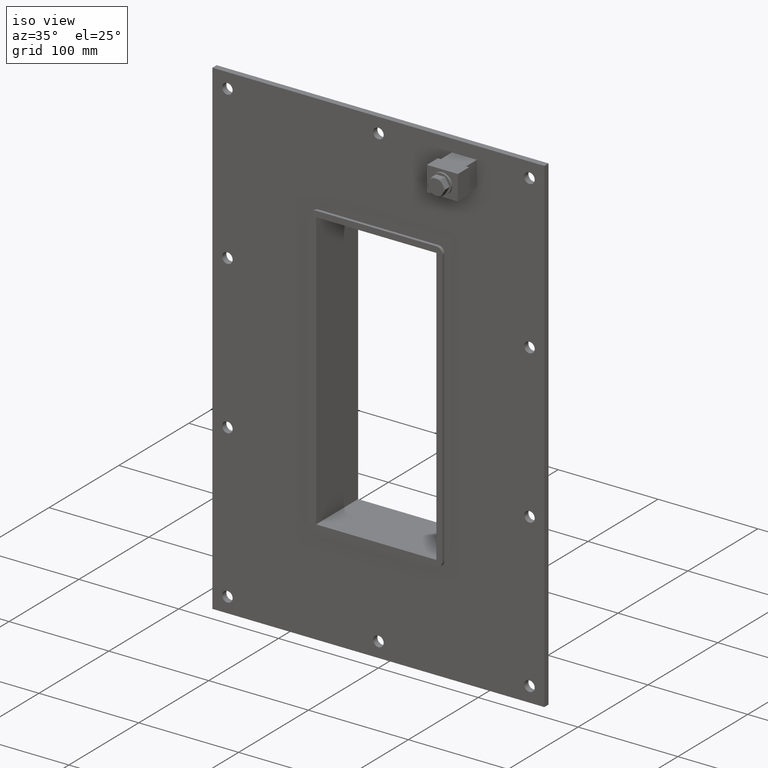
[diagram: clean part render]
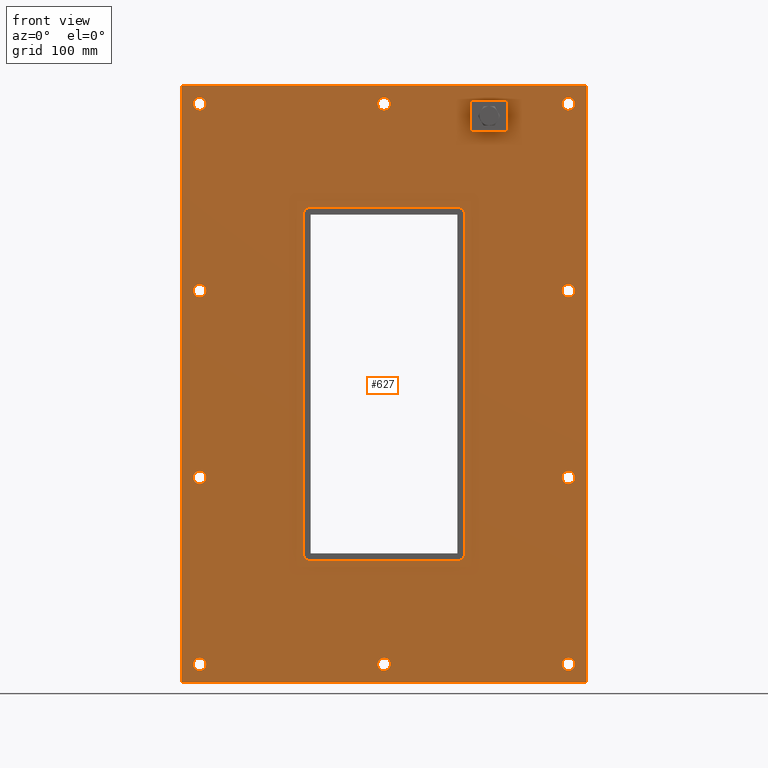
[diagram: tour spotlight — one face highlighted and labeled with its STEP entity id]
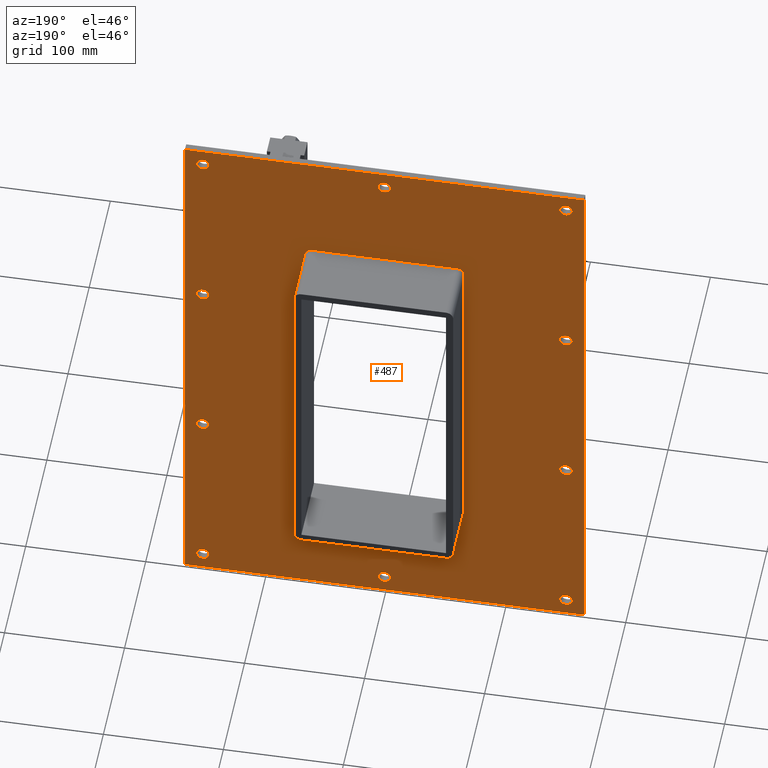
[diagram: tour spotlight — one face highlighted and labeled with its STEP entity id]
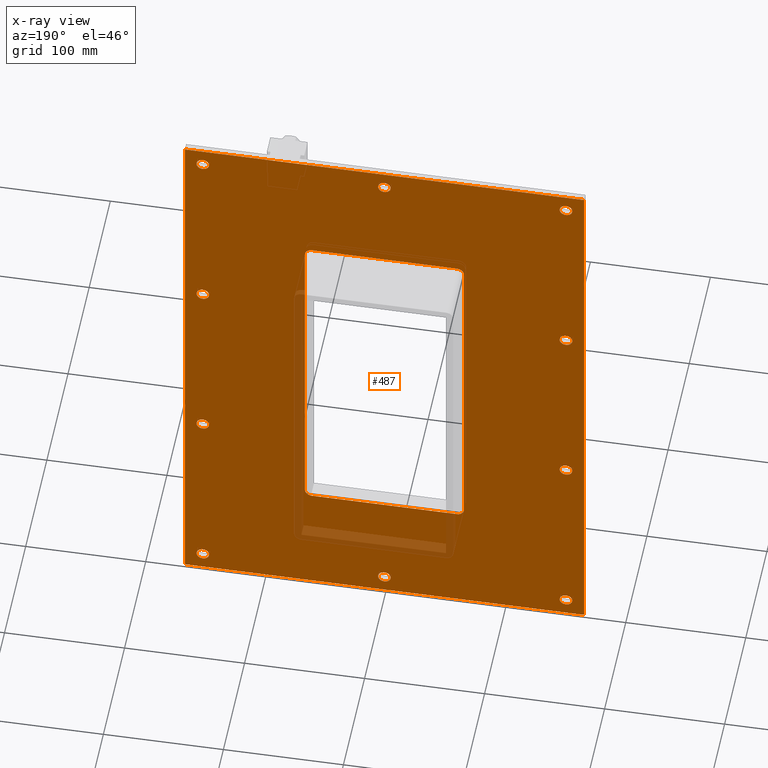
[diagram: x-ray of the same camera — body ghosted, this tour face saturated]
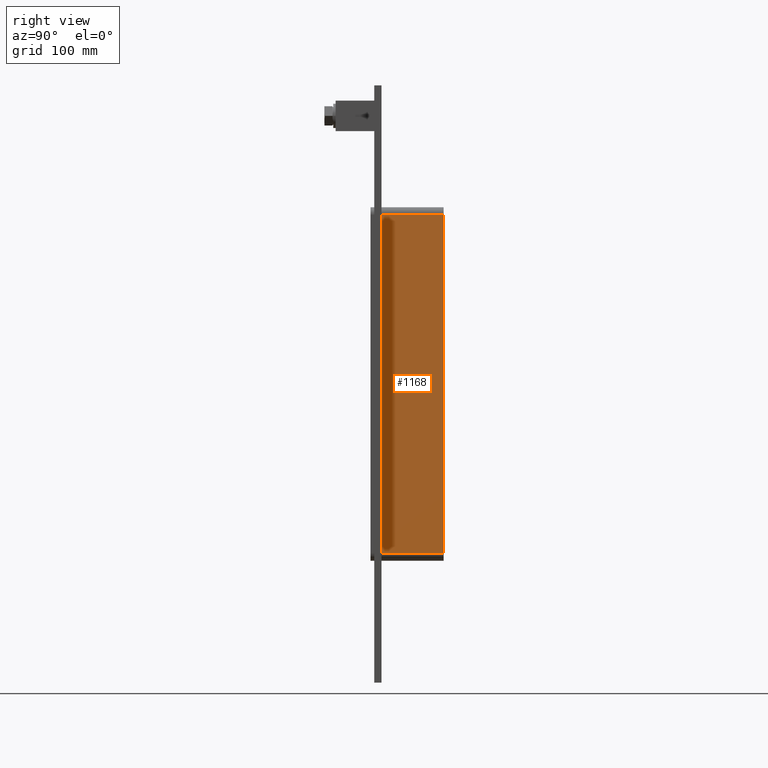
[diagram: tour spotlight — one face highlighted and labeled with its STEP entity id]
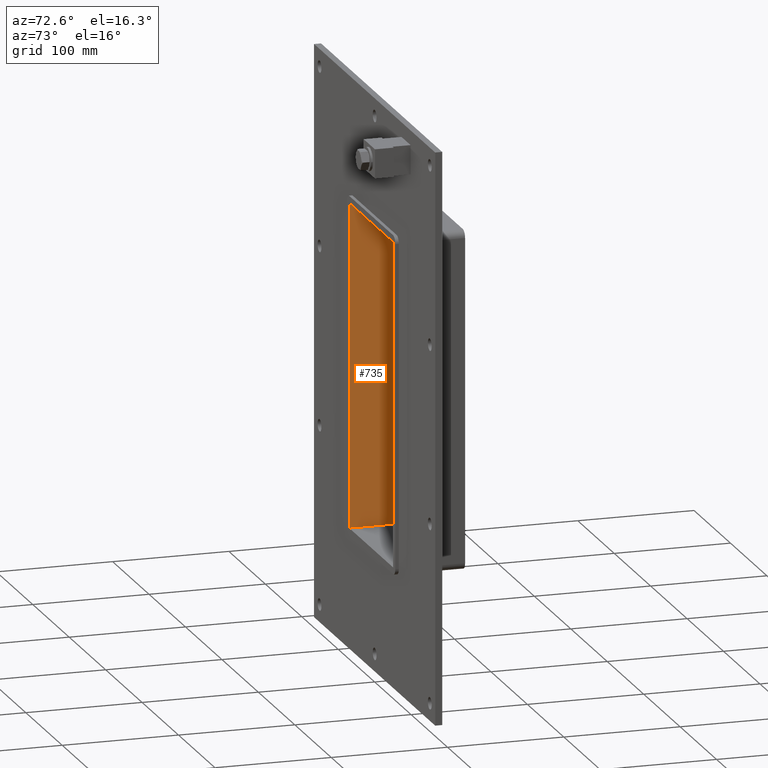
[diagram: tour spotlight — one face highlighted and labeled with its STEP entity id]
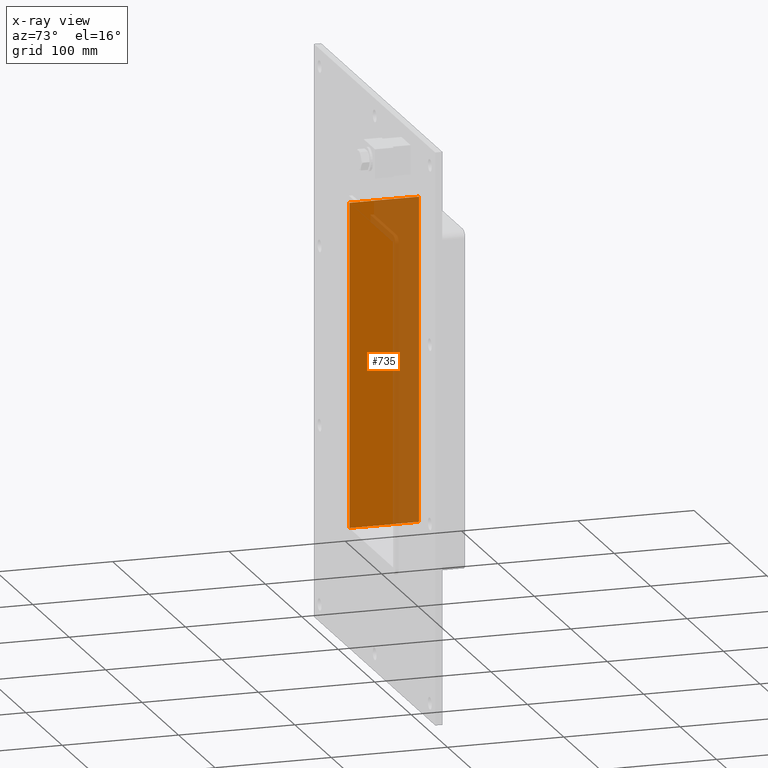
[diagram: x-ray of the same camera — body ghosted, this tour face saturated]
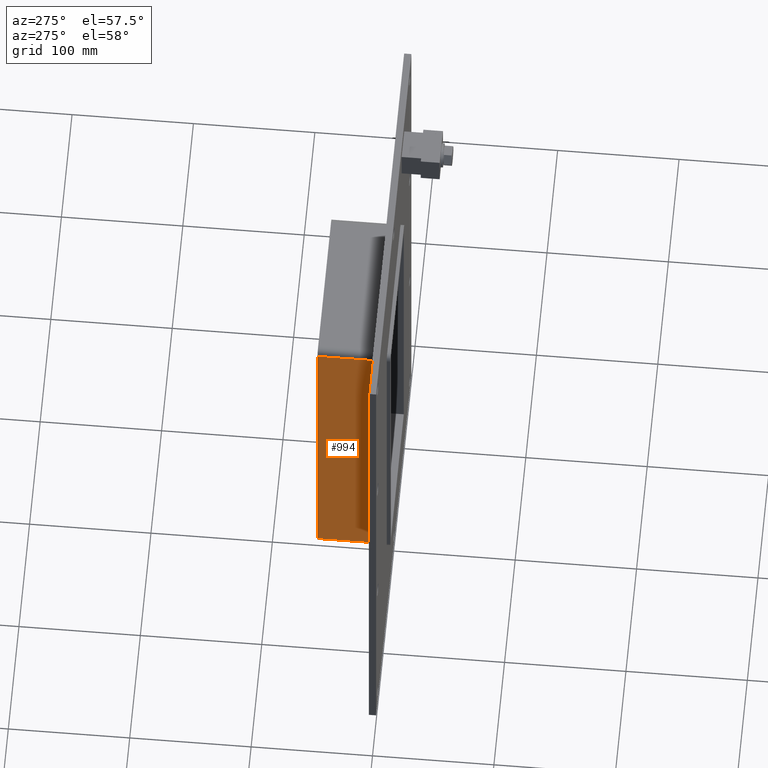
[diagram: tour spotlight — one face highlighted and labeled with its STEP entity id]
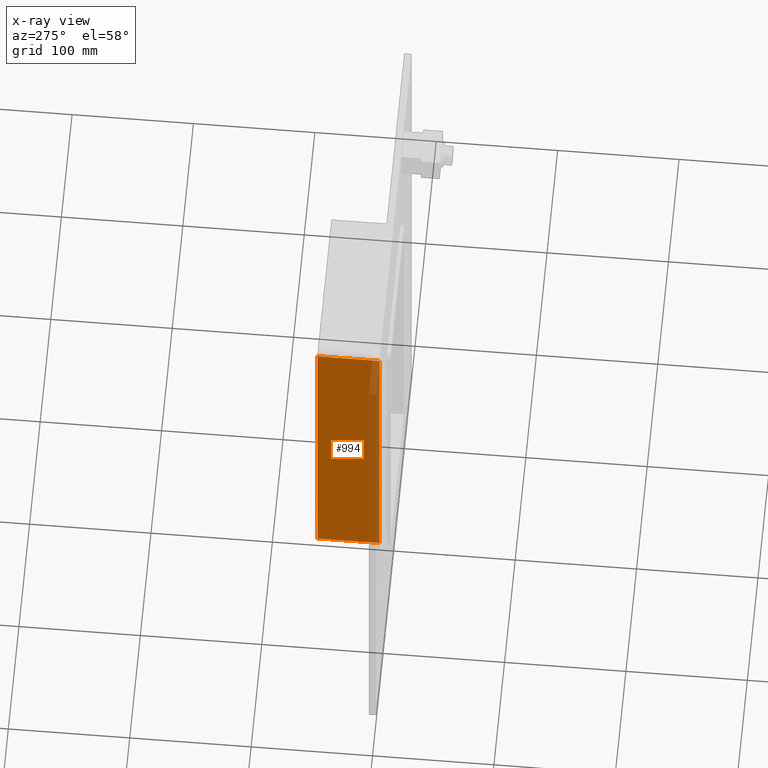
[diagram: x-ray of the same camera — body ghosted, this tour face saturated]
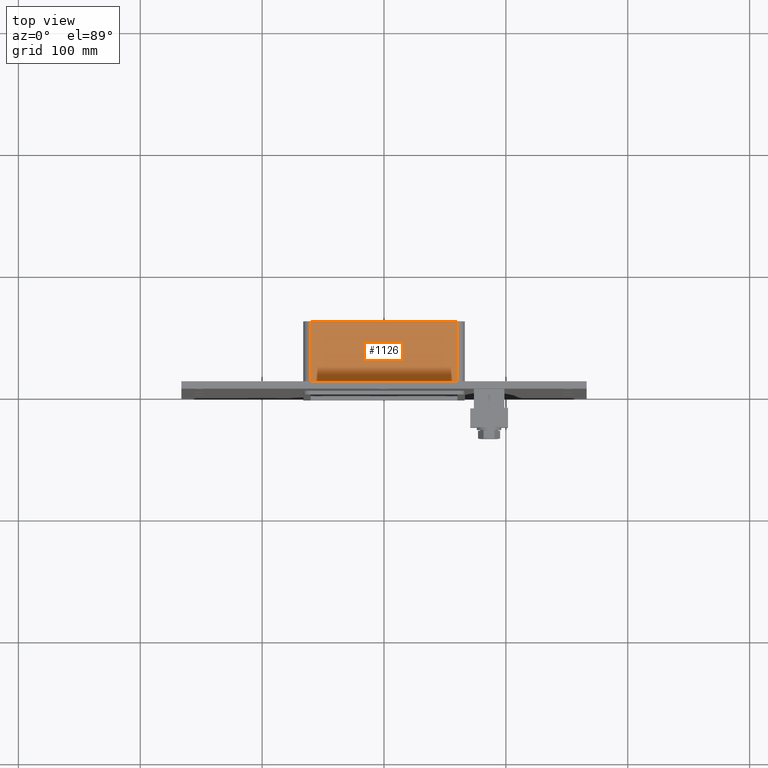
[diagram: tour spotlight — one face highlighted and labeled with its STEP entity id]
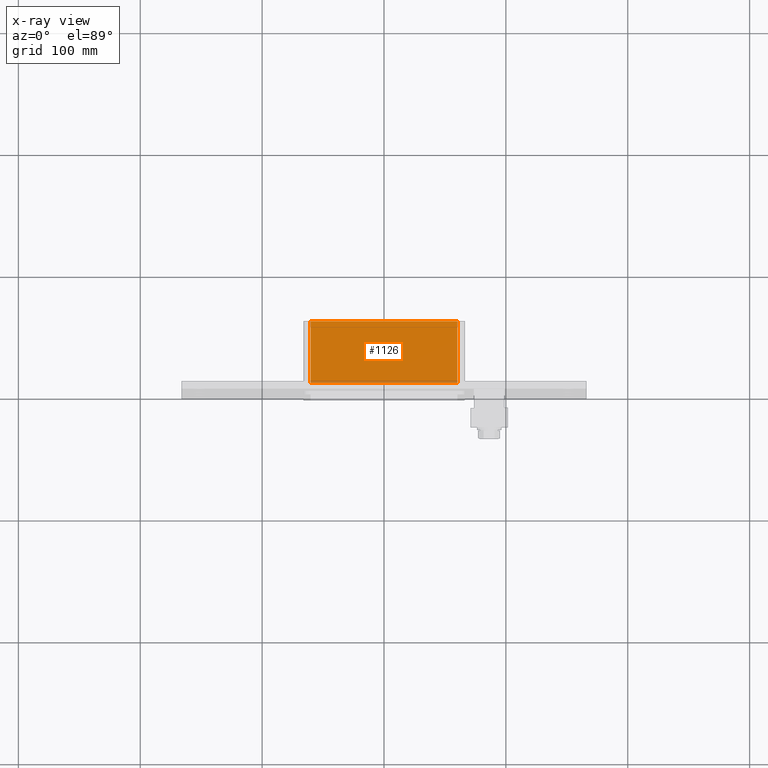
[diagram: x-ray of the same camera — body ghosted, this tour face saturated]
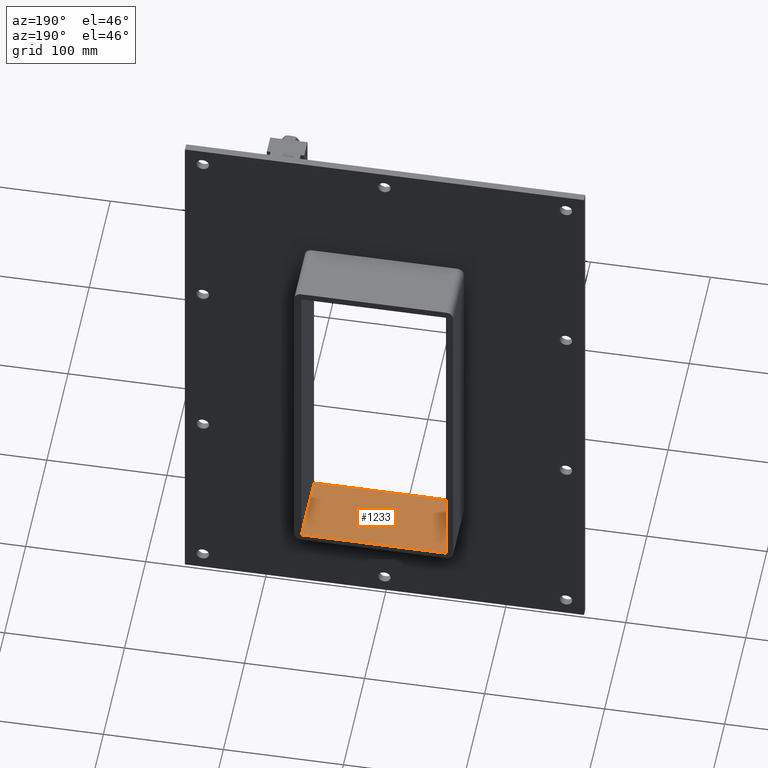
[diagram: tour spotlight — one face highlighted and labeled with its STEP entity id]
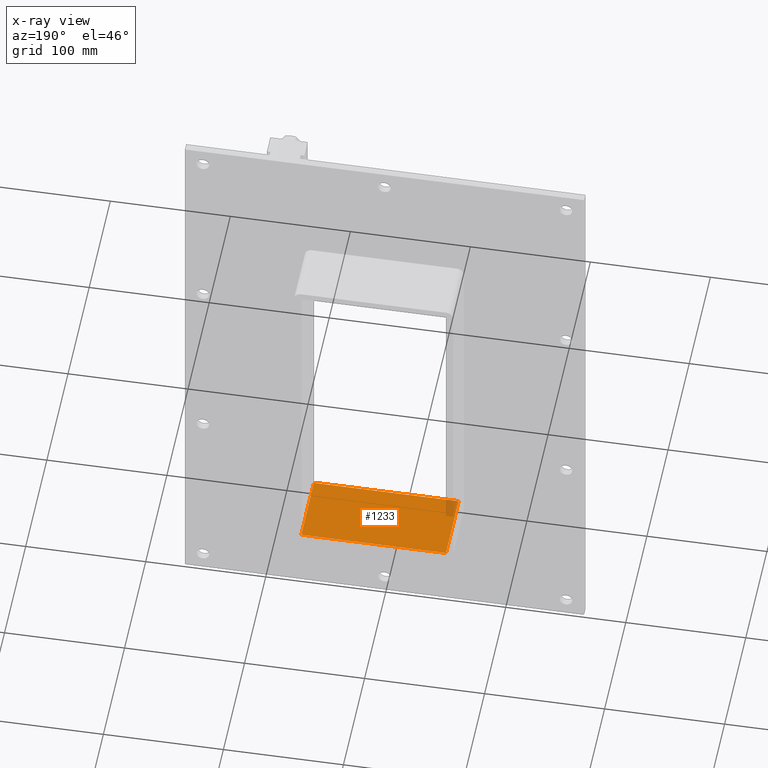
[diagram: x-ray of the same camera — body ghosted, this tour face saturated]
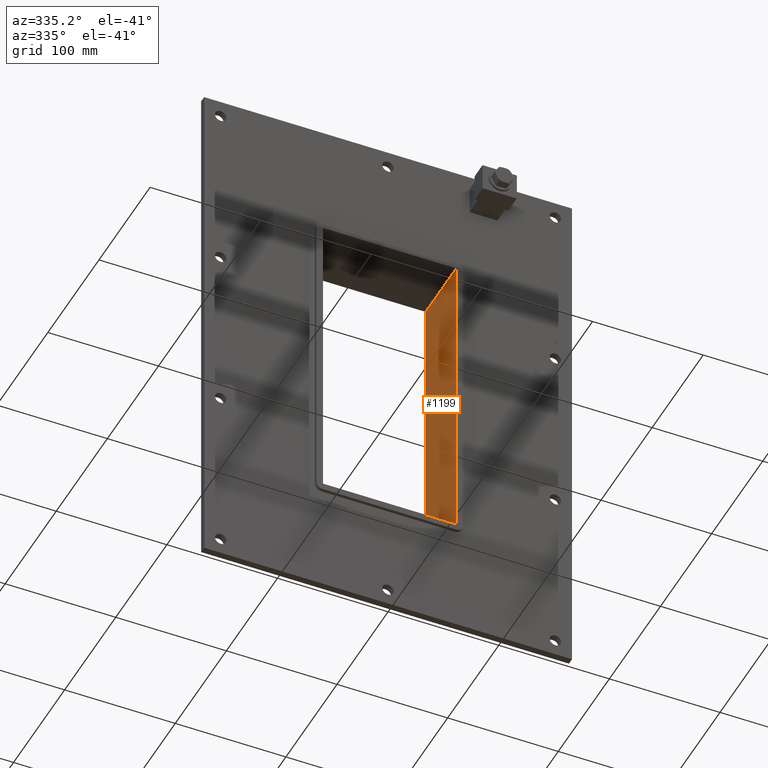
[diagram: tour spotlight — one face highlighted and labeled with its STEP entity id]
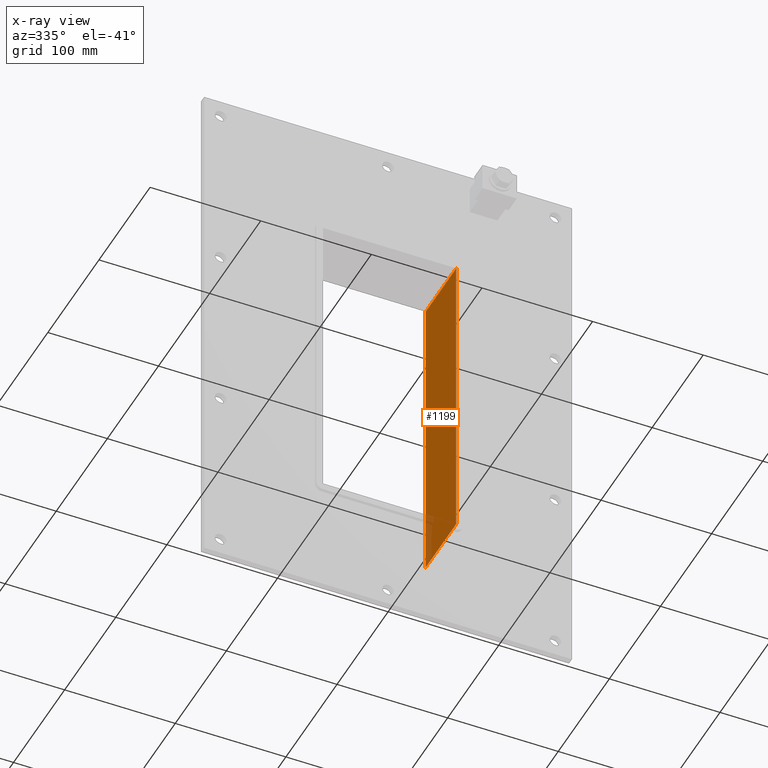
[diagram: x-ray of the same camera — body ghosted, this tour face saturated]
A machine part: a face-by-face anatomy tour. The part has 74 B-rep faces; the first image is the clean iso view, then the 8 largest visible faces are spotlighted one at a time (largest first), each with its STEP entity span.

Face 1 — front view, entity #627. In plain terms, the highlighted planar face has unit normal (0, 1, 0).
Definition (entity closure, byte-faithful):
#84=CARTESIAN_POINT('',(-146.00000000000014,0.0,-230.00000000000006));
#85=VERTEX_POINT('',#84);
#86=CARTESIAN_POINT('',(-151.25000000000014,0.0,-230.00000000000006));
#87=DIRECTION('',(0.0,1.0,0.0));
#88=DIRECTION('',(1.0,0.0,0.0));
#89=AXIS2_PLACEMENT_3D('',#86,#87,#88);
#90=CIRCLE('',#89,5.25);
#91=EDGE_CURVE('',#85,#85,#90,.T.);
#112=CARTESIAN_POINT('',(156.59999999999991,0.0,-76.700000000000017));
#113=VERTEX_POINT('',#112);
#114=CARTESIAN_POINT('',(151.34999999999991,0.0,-76.700000000000017));
#115=DIRECTION('',(0.0,1.0,0.0));
#116=DIRECTION('',(1.0,0.0,0.0));
#117=AXIS2_PLACEMENT_3D('',#114,#115,#116);
#118=CIRCLE('',#117,5.25);
#119=EDGE_CURVE('',#113,#113,#118,.T.);
#140=CARTESIAN_POINT('',(-146.00000000000014,0.0,-76.700000000000017));
#141=VERTEX_POINT('',#140);
#142=CARTESIAN_POINT('',(-151.25000000000014,0.0,-76.700000000000017));
#143=DIRECTION('',(0.0,1.0,0.0));
#144=DIRECTION('',(1.0,0.0,0.0));
#145=AXIS2_PLACEMENT_3D('',#142,#143,#144);
#146=CIRCLE('',#145,5.25);
#147=EDGE_CURVE('',#141,#141,#146,.T.);
#168=CARTESIAN_POINT('',(156.59999999999991,0.0,76.599999999999994));
#169=VERTEX_POINT('',#168);
#170=CARTESIAN_POINT('',(151.34999999999991,0.0,76.599999999999994));
#171=DIRECTION('',(0.0,1.0,0.0));
#172=DIRECTION('',(1.0,0.0,0.0));
#173=AXIS2_PLACEMENT_3D('',#170,#171,#172);
#174=CIRCLE('',#173,5.25);
#175=EDGE_CURVE('',#169,#169,#174,.T.);
#196=CARTESIAN_POINT('',(-146.00000000000014,0.0,76.599999999999994));
#197=VERTEX_POINT('',#196);
#198=CARTESIAN_POINT('',(-151.25000000000014,0.0,76.599999999999994));
#199=DIRECTION('',(0.0,1.0,0.0));
#200=DIRECTION('',(1.0,0.0,0.0));
#201=AXIS2_PLACEMENT_3D('',#198,#199,#200);
#202=CIRCLE('',#201,5.25);
#203=EDGE_CURVE('',#197,#197,#202,.T.);
#224=CARTESIAN_POINT('',(5.299999999999887,0.0,229.90000000000003));
#225=VERTEX_POINT('',#224);
#226=CARTESIAN_POINT('',(0.049999999999883,0.0,229.90000000000003));
#227=DIRECTION('',(0.0,1.0,0.0));
#228=DIRECTION('',(1.0,0.0,0.0));
#229=AXIS2_PLACEMENT_3D('',#226,#227,#228);
#230=CIRCLE('',#229,5.25);
#231=EDGE_CURVE('',#225,#225,#230,.T.);
#252=CARTESIAN_POINT('',(5.299999999999887,0.0,-230.00000000000006));
#253=VERTEX_POINT('',#252);
#254=CARTESIAN_POINT('',(0.049999999999883,0.0,-230.00000000000006));
#255=DIRECTION('',(0.0,1.0,0.0));
#256=DIRECTION('',(1.0,0.0,0.0));
#257=AXIS2_PLACEMENT_3D('',#254,#255,#256);
#258=CIRCLE('',#257,5.25);
#259=EDGE_CURVE('',#253,#253,#258,.T.);
#280=CARTESIAN_POINT('',(156.59999999999991,0.0,-230.00000000000006));
#281=VERTEX_POINT('',#280);
#282=CARTESIAN_POINT('',(151.34999999999991,0.0,-230.00000000000006));
#283=DIRECTION('',(0.0,1.0,0.0));
#284=DIRECTION('',(1.0,0.0,0.0));
#285=AXIS2_PLACEMENT_3D('',#282,#283,#284);
#286=CIRCLE('',#285,5.25);
#287=EDGE_CURVE('',#281,#281,#286,.T.);
#308=CARTESIAN_POINT('',(-146.00000000000014,0.0,229.90000000000003));
#309=VERTEX_POINT('',#308);
#310=CARTESIAN_POINT('',(-151.25000000000014,0.0,229.90000000000003));
#311=DIRECTION('',(0.0,1.0,0.0));
#312=DIRECTION('',(1.0,0.0,0.0));
#313=AXIS2_PLACEMENT_3D('',#310,#311,#312);
#314=CIRCLE('',#313,5.25);
#315=EDGE_CURVE('',#309,#309,#314,.T.);
#336=CARTESIAN_POINT('',(156.59999999999991,0.0,229.90000000000003));
#337=VERTEX_POINT('',#336);
#338=CARTESIAN_POINT('',(151.34999999999991,0.0,229.90000000000003));
#339=DIRECTION('',(0.0,1.0,0.0));
#340=DIRECTION('',(1.0,0.0,0.0));
#341=AXIS2_PLACEMENT_3D('',#338,#339,#340);
#342=CIRCLE('',#341,5.25);
#343=EDGE_CURVE('',#337,#337,#342,.T.);
#488=CARTESIAN_POINT('',(0.0,0.0,-3.131571E-014));
#489=DIRECTION('',(0.0,1.0,0.0));
#490=DIRECTION('',(0.0,0.0,1.0));
#491=AXIS2_PLACEMENT_3D('',#488,#489,#490);
#492=PLANE('',#491);
#493=CARTESIAN_POINT('',(-166.25,0.0,245.0));
#494=VERTEX_POINT('',#493);
#495=CARTESIAN_POINT('',(166.25,0.0,245.0));
#496=VERTEX_POINT('',#495);
#497=CARTESIAN_POINT('',(-166.25,0.0,245.0));
#498=DIRECTION('',(1.0,0.0,0.0));
#499=VECTOR('',#498,332.5);
#500=LINE('',#497,#499);
#501=EDGE_CURVE('',#494,#496,#500,.T.);
#502=ORIENTED_EDGE('',*,*,#501,.F.);
#503=CARTESIAN_POINT('',(-166.25,0.0,-245.00000000000006));
#504=VERTEX_POINT('',#503);
#505=CARTESIAN_POINT('',(-166.25,0.0,-245.00000000000006));
#506=DIRECTION('',(0.0,0.0,1.0));
#507=VECTOR('',#506,490.00000000000006);
#508=LINE('',#505,#507);
#509=EDGE_CURVE('',#504,#494,#508,.T.);
#510=ORIENTED_EDGE('',*,*,#509,.F.);
#511=CARTESIAN_POINT('',(166.25,0.0,-245.00000000000006));
#512=VERTEX_POINT('',#511);
#513=CARTESIAN_POINT('',(166.25,0.0,-245.00000000000006));
#514=DIRECTION('',(-1.0,0.0,0.0));
#515=VECTOR('',#514,332.5);
#516=LINE('',#513,#515);
#517=EDGE_CURVE('',#512,#504,#516,.T.);
#518=ORIENTED_EDGE('',*,*,#517,.F.);
#519=CARTESIAN_POINT('',(166.25,0.0,245.0));
#520=DIRECTION('',(0.0,0.0,-1.0));
#521=VECTOR('',#520,490.00000000000006);
#522=LINE('',#519,#521);
#523=EDGE_CURVE('',#496,#512,#522,.T.);
#524=ORIENTED_EDGE('',*,*,#523,.F.);
#525=EDGE_LOOP('',(#502,#510,#518,#524));
#526=FACE_OUTER_BOUND('',#525,.T.);
#527=ORIENTED_EDGE('',*,*,#91,.T.);
#528=EDGE_LOOP('',(#527));
#529=FACE_BOUND('',#528,.T.);
#530=ORIENTED_EDGE('',*,*,#119,.T.);
#531=EDGE_LOOP('',(#530));
#532=FACE_BOUND('',#531,.T.);
#533=ORIENTED_EDGE('',*,*,#147,.T.);
#534=EDGE_LOOP('',(#533));
#535=FACE_BOUND('',#534,.T.);
#536=ORIENTED_EDGE('',*,*,#175,.T.);
#537=EDGE_LOOP('',(#536));
#538=FACE_BOUND('',#537,.T.);
#539=ORIENTED_EDGE('',*,*,#203,.T.);
#540=EDGE_LOOP('',(#539));
#541=FACE_BOUND('',#540,.T.);
#542=ORIENTED_EDGE('',*,*,#231,.T.);
#543=EDGE_LOOP('',(#542));
#544=FACE_BOUND('',#543,.T.);
#545=ORIENTED_EDGE('',*,*,#259,.T.);
#546=EDGE_LOOP('',(#545));
#547=FACE_BOUND('',#546,.T.);
#548=ORIENTED_EDGE('',*,*,#287,.T.);
#549=EDGE_LOOP('',(#548));
#550=FACE_BOUND('',#549,.T.);
#551=ORIENTED_EDGE('',*,*,#315,.T.);
#552=EDGE_LOOP('',(#551));
#553=FACE_BOUND('',#552,.T.);
#554=ORIENTED_EDGE('',*,*,#343,.T.);
#555=EDGE_LOOP('',(#554));
#556=FACE_BOUND('',#555,.T.);
#557=CARTESIAN_POINT('',(-60.25,0.0,145.0));
#558=VERTEX_POINT('',#557);
#559=CARTESIAN_POINT('',(-66.25,0.0,139.0));
#560=VERTEX_POINT('',#559);
#561=CARTESIAN_POINT('',(-60.25,0.0,139.0));
#562=DIRECTION('',(0.0,-1.0,0.0));
#563=DIRECTION('',(-0.707106781186546,0.0,0.707106781186549));
#564=AXIS2_PLACEMENT_3D('',#561,#562,#563);
#565=CIRCLE('',#564,6.000000000000001);
#566=EDGE_CURVE('',#558,#560,#565,.T.);
#567=ORIENTED_EDGE('',*,*,#566,.F.);
#568=CARTESIAN_POINT('',(60.25,0.0,145.0));
#569=VERTEX_POINT('',#568);
#570=CARTESIAN_POINT('',(60.25,0.0,145.0));
#571=DIRECTION('',(-1.0,0.0,0.0));
#572=VECTOR('',#571,120.5);
#573=LINE('',#570,#572);
#574=EDGE_CURVE('',#569,#558,#573,.T.);
#575=ORIENTED_EDGE('',*,*,#574,.F.);
#576=CARTESIAN_POINT('',(66.25,0.0,139.0));
#577=VERTEX_POINT('',#576);
#578=CARTESIAN_POINT('',(60.25,0.0,139.0));
#579=DIRECTION('',(0.0,-1.0,0.0));
#580=DIRECTION('',(0.707106781186548,0.0,0.707106781186547));
#581=AXIS2_PLACEMENT_3D('',#578,#579,#580);
#582=CIRCLE('',#581,6.0);
#583=EDGE_CURVE('',#577,#569,#582,.T.);
#584=ORIENTED_EDGE('',*,*,#583,.F.);
#585=CARTESIAN_POINT('',(66.25,0.0,-139.0));
#586=VERTEX_POINT('',#585);
#587=CARTESIAN_POINT('',(66.25,0.0,-139.0));
#588=DIRECTION('',(0.0,0.0,1.0));
#589=VECTOR('',#588,278.0);
#590=LINE('',#587,#589);
#591=EDGE_CURVE('',#586,#577,#590,.T.);
#592=ORIENTED_EDGE('',*,*,#591,.F.);
#593=CARTESIAN_POINT('',(60.25,0.0,-145.0));
#594=VERTEX_POINT('',#593);
#595=CARTESIAN_POINT('',(60.25,0.0,-139.0));
#596=DIRECTION('',(0.0,-1.0,0.0));
#597=DIRECTION('',(0.707106781186546,0.0,-0.707106781186549));
#598=AXIS2_PLACEMENT_3D('',#595,#596,#597);
#599=CIRCLE('',#598,6.000000000000001);
#600=EDGE_CURVE('',#594,#586,#599,.T.);
#601=ORIENTED_EDGE('',*,*,#600,.F.);
#602=CARTESIAN_POINT('',(-60.25,0.0,-145.0));
#603=VERTEX_POINT('',#602);
#604=CARTESIAN_POINT('',(-60.25,0.0,-145.0));
#605=DIRECTION('',(1.0,0.0,0.0));
#606=VECTOR('',#605,120.5);
#607=LINE('',#604,#606);
#608=EDGE_CURVE('',#603,#594,#607,.T.);
#609=ORIENTED_EDGE('',*,*,#608,.F.);
#610=CARTESIAN_POINT('',(-66.25,0.0,-139.0));
#611=VERTEX_POINT('',#610);
#612=CARTESIAN_POINT('',(-60.25,0.0,-139.0));
#613=DIRECTION('',(0.0,-1.0,0.0));
#614=DIRECTION('',(-0.707106781186546,0.0,-0.707106781186549));
#615=AXIS2_PLACEMENT_3D('',#612,#613,#614);
#616=CIRCLE('',#615,6.000000000000001);
#617=EDGE_CURVE('',#611,#603,#616,.T.);
#618=ORIENTED_EDGE('',*,*,#617,.F.);
#619=CARTESIAN_POINT('',(-66.25,0.0,139.0));
#620=DIRECTION('',(0.0,0.0,-1.0));
#621=VECTOR('',#620,278.0);
#622=LINE('',#619,#621);
#623=EDGE_CURVE('',#560,#611,#622,.T.);
#624=ORIENTED_EDGE('',*,*,#623,.F.);
#625=EDGE_LOOP('',(#567,#575,#584,#592,#601,#609,#618,#624));
#626=FACE_BOUND('',#625,.T.);
#627=ADVANCED_FACE('',(#526,#529,#532,#535,#538,#541,#544,#547,#550,#553,#556,#626),#492,.F.);

Face 2 — auxiliary view, entity #487. An x-ray twin of the same camera follows (body ghosted, this face saturated) — the face is partly hidden behind the body. In plain terms, the highlighted planar face has unit normal (0, 1, 0).
Definition (entity closure, byte-faithful):
#73=CARTESIAN_POINT('',(-156.50000000000014,6.000000000000014,-230.00000000000006));
#74=VERTEX_POINT('',#73);
#75=CARTESIAN_POINT('',(-151.25000000000014,6.000000000000014,-230.00000000000006));
#76=DIRECTION('',(0.0,-1.0,0.0));
#77=DIRECTION('',(1.0,0.0,0.0));
#78=AXIS2_PLACEMENT_3D('',#75,#76,#77);
#79=CIRCLE('',#78,5.25);
#80=EDGE_CURVE('',#74,#74,#79,.T.);
#101=CARTESIAN_POINT('',(146.09999999999991,6.000000000000014,-76.700000000000017));
#102=VERTEX_POINT('',#101);
#103=CARTESIAN_POINT('',(151.34999999999991,6.000000000000014,-76.700000000000017));
#104=DIRECTION('',(0.0,-1.0,0.0));
#105=DIRECTION('',(1.0,0.0,0.0));
#106=AXIS2_PLACEMENT_3D('',#103,#104,#105);
#107=CIRCLE('',#106,5.25);
#108=EDGE_CURVE('',#102,#102,#107,.T.);
#129=CARTESIAN_POINT('',(-156.50000000000014,6.000000000000014,-76.700000000000017));
#130=VERTEX_POINT('',#129);
#131=CARTESIAN_POINT('',(-151.25000000000014,6.000000000000014,-76.700000000000017));
#132=DIRECTION('',(0.0,-1.0,0.0));
#133=DIRECTION('',(1.0,0.0,0.0));
#134=AXIS2_PLACEMENT_3D('',#131,#132,#133);
#135=CIRCLE('',#134,5.25);
#136=EDGE_CURVE('',#130,#130,#135,.T.);
#157=CARTESIAN_POINT('',(146.09999999999991,6.000000000000014,76.599999999999994));
#158=VERTEX_POINT('',#157);
#159=CARTESIAN_POINT('',(151.34999999999991,6.000000000000014,76.599999999999994));
#160=DIRECTION('',(0.0,-1.0,0.0));
#161=DIRECTION('',(1.0,0.0,0.0));
#162=AXIS2_PLACEMENT_3D('',#159,#160,#161);
#163=CIRCLE('',#162,5.25);
#164=EDGE_CURVE('',#158,#158,#163,.T.);
#185=CARTESIAN_POINT('',(-156.50000000000014,6.000000000000014,76.599999999999994));
#186=VERTEX_POINT('',#185);
#187=CARTESIAN_POINT('',(-151.25000000000014,6.000000000000014,76.599999999999994));
#188=DIRECTION('',(0.0,-1.0,0.0));
#189=DIRECTION('',(1.0,0.0,0.0));
#190=AXIS2_PLACEMENT_3D('',#187,#188,#189);
#191=CIRCLE('',#190,5.25);
#192=EDGE_CURVE('',#186,#186,#191,.T.);
#213=CARTESIAN_POINT('',(-5.20000000000012,6.000000000000014,229.90000000000003));
#214=VERTEX_POINT('',#213);
#215=CARTESIAN_POINT('',(0.049999999999883,6.000000000000014,229.90000000000003));
#216=DIRECTION('',(0.0,-1.0,0.0));
#217=DIRECTION('',(1.0,0.0,0.0));
#218=AXIS2_PLACEMENT_3D('',#215,#216,#217);
#219=CIRCLE('',#218,5.25);
#220=EDGE_CURVE('',#214,#214,#219,.T.);
#241=CARTESIAN_POINT('',(-5.20000000000012,6.000000000000014,-230.00000000000006));
#242=VERTEX_POINT('',#241);
#243=CARTESIAN_POINT('',(0.049999999999883,6.000000000000014,-230.00000000000006));
#244=DIRECTION('',(0.0,-1.0,0.0));
#245=DIRECTION('',(1.0,0.0,0.0));
#246=AXIS2_PLACEMENT_3D('',#243,#244,#245);
#247=CIRCLE('',#246,5.25);
#248=EDGE_CURVE('',#242,#242,#247,.T.);
#269=CARTESIAN_POINT('',(146.09999999999991,6.000000000000014,-230.00000000000006));
#270=VERTEX_POINT('',#269);
#271=CARTESIAN_POINT('',(151.34999999999991,6.000000000000014,-230.00000000000006));
#272=DIRECTION('',(0.0,-1.0,0.0));
#273=DIRECTION('',(1.0,0.0,0.0));
#274=AXIS2_PLACEMENT_3D('',#271,#272,#273);
#275=CIRCLE('',#274,5.25);
#276=EDGE_CURVE('',#270,#270,#275,.T.);
#297=CARTESIAN_POINT('',(-156.50000000000014,6.000000000000014,229.90000000000003));
#298=VERTEX_POINT('',#297);
#299=CARTESIAN_POINT('',(-151.25000000000014,6.000000000000014,229.90000000000003));
#300=DIRECTION('',(0.0,-1.0,0.0));
#301=DIRECTION('',(1.0,0.0,0.0));
#302=AXIS2_PLACEMENT_3D('',#299,#300,#301);
#303=CIRCLE('',#302,5.25);
#304=EDGE_CURVE('',#298,#298,#303,.T.);
#325=CARTESIAN_POINT('',(146.09999999999991,6.000000000000014,229.90000000000003));
#326=VERTEX_POINT('',#325);
#327=CARTESIAN_POINT('',(151.34999999999991,6.000000000000014,229.90000000000003));
#328=DIRECTION('',(0.0,-1.0,0.0));
#329=DIRECTION('',(1.0,0.0,0.0));
#330=AXIS2_PLACEMENT_3D('',#327,#328,#329);
#331=CIRCLE('',#330,5.25);
#332=EDGE_CURVE('',#326,#326,#331,.T.);
#348=CARTESIAN_POINT('',(0.0,6.000000000000001,-3.131571E-014));
#349=DIRECTION('',(0.0,1.0,0.0));
#350=DIRECTION('',(0.0,0.0,1.0));
#351=AXIS2_PLACEMENT_3D('',#348,#349,#350);
#352=PLANE('',#351);
#353=CARTESIAN_POINT('',(-166.25,6.000000000000001,245.0));
#354=VERTEX_POINT('',#353);
#355=CARTESIAN_POINT('',(166.25,6.000000000000001,245.0));
#356=VERTEX_POINT('',#355);
#357=CARTESIAN_POINT('',(-166.25,6.000000000000001,245.0));
#358=DIRECTION('',(1.0,0.0,0.0));
#359=VECTOR('',#358,332.5);
#360=LINE('',#357,#359);
#361=EDGE_CURVE('',#354,#356,#360,.T.);
#362=ORIENTED_EDGE('',*,*,#361,.T.);
#363=CARTESIAN_POINT('',(166.25,6.000000000000001,-245.00000000000006));
#364=VERTEX_POINT('',#363);
#365=CARTESIAN_POINT('',(166.25,6.000000000000001,245.0));
#366=DIRECTION('',(0.0,0.0,-1.0));
#367=VECTOR('',#366,490.00000000000006);
#368=LINE('',#365,#367);
#369=EDGE_CURVE('',#356,#364,#368,.T.);
#370=ORIENTED_EDGE('',*,*,#369,.T.);
#371=CARTESIAN_POINT('',(-166.25,6.000000000000001,-245.00000000000006));
#372=VERTEX_POINT('',#371);
#373=CARTESIAN_POINT('',(166.25,6.000000000000001,-245.00000000000006));
#374=DIRECTION('',(-1.0,0.0,0.0));
#375=VECTOR('',#374,332.5);
#376=LINE('',#373,#375);
#377=EDGE_CURVE('',#364,#372,#376,.T.);
#378=ORIENTED_EDGE('',*,*,#377,.T.);
#379=CARTESIAN_POINT('',(-166.25,6.000000000000001,-245.00000000000006));
#380=DIRECTION('',(0.0,0.0,1.0));
#381=VECTOR('',#380,490.00000000000006);
#382=LINE('',#379,#381);
#383=EDGE_CURVE('',#372,#354,#382,.T.);
#384=ORIENTED_EDGE('',*,*,#383,.T.);
#385=EDGE_LOOP('',(#362,#370,#378,#384));
#386=FACE_OUTER_BOUND('',#385,.T.);
#387=ORIENTED_EDGE('',*,*,#80,.T.);
#388=EDGE_LOOP('',(#387));
#389=FACE_BOUND('',#388,.T.);
#390=ORIENTED_EDGE('',*,*,#108,.T.);
#391=EDGE_LOOP('',(#390));
#392=FACE_BOUND('',#391,.T.);
#393=ORIENTED_EDGE('',*,*,#136,.T.);
#394=EDGE_LOOP('',(#393));
#395=FACE_BOUND('',#394,.T.);
#396=ORIENTED_EDGE('',*,*,#164,.T.);
#397=EDGE_LOOP('',(#396));
#398=FACE_BOUND('',#397,.T.);
#399=ORIENTED_EDGE('',*,*,#192,.T.);
#400=EDGE_LOOP('',(#399));
#401=FACE_BOUND('',#400,.T.);
#402=ORIENTED_EDGE('',*,*,#220,.T.);
#403=EDGE_LOOP('',(#402));
#404=FACE_BOUND('',#403,.T.);
#405=ORIENTED_EDGE('',*,*,#248,.T.);
#406=EDGE_LOOP('',(#405));
#407=FACE_BOUND('',#406,.T.);
#408=ORIENTED_EDGE('',*,*,#276,.T.);
#409=EDGE_LOOP('',(#408));
#410=FACE_BOUND('',#409,.T.);
#411=ORIENTED_EDGE('',*,*,#304,.T.);
#412=EDGE_LOOP('',(#411));
#413=FACE_BOUND('',#412,.T.);
#414=ORIENTED_EDGE('',*,*,#332,.T.);
#415=EDGE_LOOP('',(#414));
#416=FACE_BOUND('',#415,.T.);
#417=CARTESIAN_POINT('',(-66.25,6.000000000000001,139.0));
#418=VERTEX_POINT('',#417);
#419=CARTESIAN_POINT('',(-60.25,6.000000000000001,145.0));
#420=VERTEX_POINT('',#419);
#421=CARTESIAN_POINT('',(-60.25,6.000000000000001,139.0));
#422=DIRECTION('',(0.0,1.0,0.0));
#423=DIRECTION('',(-0.707106781186546,0.0,0.707106781186549));
#424=AXIS2_PLACEMENT_3D('',#421,#422,#423);
#425=CIRCLE('',#424,6.000000000000001);
#426=EDGE_CURVE('',#418,#420,#425,.T.);
#427=ORIENTED_EDGE('',*,*,#426,.F.);
#428=CARTESIAN_POINT('',(-66.25,6.000000000000001,-139.0));
#429=VERTEX_POINT('',#428);
#430=CARTESIAN_POINT('',(-66.25,6.000000000000001,-139.0));
#431=DIRECTION('',(0.0,0.0,1.0));
#432=VECTOR('',#431,278.0);
#433=LINE('',#430,#432);
#434=EDGE_CURVE('',#429,#418,#433,.T.);
#435=ORIENTED_EDGE('',*,*,#434,.F.);
#436=CARTESIAN_POINT('',(-60.25,6.000000000000001,-145.0));
#437=VERTEX_POINT('',#436);
#438=CARTESIAN_POINT('',(-60.25,6.000000000000001,-139.0));
#439=DIRECTION('',(0.0,1.0,0.0));
#440=DIRECTION('',(-0.707106781186546,0.0,-0.707106781186549));
#441=AXIS2_PLACEMENT_3D('',#438,#439,#440);
#442=CIRCLE('',#441,6.000000000000001);
#443=EDGE_CURVE('',#437,#429,#442,.T.);
#444=ORIENTED_EDGE('',*,*,#443,.F.);
#445=CARTESIAN_POINT('',(60.25,6.000000000000001,-145.0));
#446=VERTEX_POINT('',#445);
#447=CARTESIAN_POINT('',(60.25,6.000000000000001,-145.0));
#448=DIRECTION('',(-1.0,0.0,0.0));
#449=VECTOR('',#448,120.5);
#450=LINE('',#447,#449);
#451=EDGE_CURVE('',#446,#437,#450,.T.);
#452=ORIENTED_EDGE('',*,*,#451,.F.);
#453=CARTESIAN_POINT('',(66.25,6.000000000000001,-139.0));
#454=VERTEX_POINT('',#453);
#455=CARTESIAN_POINT('',(60.25,6.000000000000001,-139.0));
#456=DIRECTION('',(0.0,1.0,0.0));
#457=DIRECTION('',(0.707106781186546,0.0,-0.707106781186549));
#458=AXIS2_PLACEMENT_3D('',#455,#456,#457);
#459=CIRCLE('',#458,6.000000000000001);
#460=EDGE_CURVE('',#454,#446,#459,.T.);
#461=ORIENTED_EDGE('',*,*,#460,.F.);
#462=CARTESIAN_POINT('',(66.25,6.000000000000001,139.0));
#463=VERTEX_POINT('',#462);
#464=CARTESIAN_POINT('',(66.25,6.000000000000001,139.0));
#465=DIRECTION('',(0.0,0.0,-1.0));
#466=VECTOR('',#465,278.0);
#467=LINE('',#464,#466);
#468=EDGE_CURVE('',#463,#454,#467,.T.);
#469=ORIENTED_EDGE('',*,*,#468,.F.);
#470=CARTESIAN_POINT('',(60.25,6.000000000000001,145.0));
#471=VERTEX_POINT('',#470);
#472=CARTESIAN_POINT('',(60.25,6.000000000000001,139.0));
#473=DIRECTION('',(0.0,1.0,0.0));
#474=DIRECTION('',(0.707106781186548,0.0,0.707106781186547));
#475=AXIS2_PLACEMENT_3D('',#472,#473,#474);
#476=CIRCLE('',#475,6.0);
#477=EDGE_CURVE('',#471,#463,#476,.T.);
#478=ORIENTED_EDGE('',*,*,#477,.F.);
#479=CARTESIAN_POINT('',(-60.25,6.000000000000001,145.0));
#480=DIRECTION('',(1.0,0.0,0.0));
#481=VECTOR('',#480,120.5);
#482=LINE('',#479,#481);
#483=EDGE_CURVE('',#420,#471,#482,.T.);
#484=ORIENTED_EDGE('',*,*,#483,.F.);
#485=EDGE_LOOP('',(#427,#435,#444,#452,#461,#469,#478,#484));
#486=FACE_BOUND('',#485,.T.);
#487=ADVANCED_FACE('',(#386,#389,#392,#395,#398,#401,#404,#407,#410,#413,#416,#486),#352,.T.);

Face 3 — right view, entity #1168. In plain terms, the highlighted planar face has unit normal (1, 0, 0).
Definition (entity closure, byte-faithful):
#453=CARTESIAN_POINT('',(66.25,6.000000000000001,-139.0));
#454=VERTEX_POINT('',#453);
#462=CARTESIAN_POINT('',(66.25,6.000000000000001,139.0));
#463=VERTEX_POINT('',#462);
#464=CARTESIAN_POINT('',(66.25,6.000000000000001,139.0));
#465=DIRECTION('',(0.0,0.0,-1.0));
#466=VECTOR('',#465,278.0);
#467=LINE('',#464,#466);
#468=EDGE_CURVE('',#463,#454,#467,.T.);
#782=CARTESIAN_POINT('',(66.25,57.0,-139.0));
#783=VERTEX_POINT('',#782);
#791=CARTESIAN_POINT('',(66.25,57.0,-139.0));
#792=DIRECTION('',(0.0,-1.0,0.0));
#793=VECTOR('',#792,51.0);
#794=LINE('',#791,#793);
#795=EDGE_CURVE('',#783,#454,#794,.T.);
#1133=CARTESIAN_POINT('',(66.25,57.0,139.0));
#1134=VERTEX_POINT('',#1133);
#1135=CARTESIAN_POINT('',(66.25,6.000000000000001,139.0));
#1136=DIRECTION('',(0.0,1.0,0.0));
#1137=VECTOR('',#1136,51.0);
#1138=LINE('',#1135,#1137);
#1139=EDGE_CURVE('',#463,#1134,#1138,.T.);
#1152=CARTESIAN_POINT('',(66.25,0.0,145.0));
#1153=DIRECTION('',(1.0,0.0,0.0));
#1154=DIRECTION('',(0.0,0.0,-1.0));
#1155=AXIS2_PLACEMENT_3D('',#1152,#1153,#1154);
#1156=PLANE('',#1155);
#1157=ORIENTED_EDGE('',*,*,#468,.T.);
#1158=ORIENTED_EDGE('',*,*,#795,.F.);
#1159=CARTESIAN_POINT('',(66.25,57.0,139.0));
#1160=DIRECTION('',(0.0,0.0,-1.0));
#1161=VECTOR('',#1160,278.0);
#1162=LINE('',#1159,#1161);
#1163=EDGE_CURVE('',#1134,#783,#1162,.T.);
#1164=ORIENTED_EDGE('',*,*,#1163,.F.);
#1165=ORIENTED_EDGE('',*,*,#1139,.F.);
#1166=EDGE_LOOP('',(#1157,#1158,#1164,#1165));
#1167=FACE_OUTER_BOUND('',#1166,.T.);
#1168=ADVANCED_FACE('',(#1167),#1156,.T.);

Face 4 — auxiliary view, entity #735. An x-ray twin of the same camera follows (body ghosted, this face saturated) — the face is partly hidden behind the body. In plain terms, the highlighted planar face has unit normal (-1, 0, 0).
Definition (entity closure, byte-faithful):
#696=CARTESIAN_POINT('',(-60.249999999999993,0.0,-139.0));
#697=DIRECTION('',(-1.0,0.0,0.0));
#698=DIRECTION('',(0.0,0.0,1.0));
#699=AXIS2_PLACEMENT_3D('',#696,#697,#698);
#700=PLANE('',#699);
#701=CARTESIAN_POINT('',(-60.249999999999993,-3.0,-139.0));
#702=VERTEX_POINT('',#701);
#703=CARTESIAN_POINT('',(-60.249999999999993,57.0,-139.0));
#704=VERTEX_POINT('',#703);
#705=CARTESIAN_POINT('',(-60.249999999999993,-3.0,-139.0));
#706=DIRECTION('',(0.0,1.0,0.0));
#707=VECTOR('',#706,60.0);
#708=LINE('',#705,#707);
#709=EDGE_CURVE('',#702,#704,#708,.T.);
#710=ORIENTED_EDGE('',*,*,#709,.T.);
#711=CARTESIAN_POINT('',(-60.249999999999993,57.0,139.00000000000003));
#712=VERTEX_POINT('',#711);
#713=CARTESIAN_POINT('',(-60.249999999999993,57.0,139.0));
#714=DIRECTION('',(0.0,0.0,-1.0));
#715=VECTOR('',#714,278.0);
#716=LINE('',#713,#715);
#717=EDGE_CURVE('',#712,#704,#716,.T.);
#718=ORIENTED_EDGE('',*,*,#717,.F.);
#719=CARTESIAN_POINT('',(-60.249999999999993,-3.0,139.00000000000003));
#720=VERTEX_POINT('',#719);
#721=CARTESIAN_POINT('',(-60.249999999999993,-3.0,139.00000000000003));
#722=DIRECTION('',(0.0,1.0,0.0));
#723=VECTOR('',#722,60.0);
#724=LINE('',#721,#723);
#725=EDGE_CURVE('',#720,#712,#724,.T.);
#726=ORIENTED_EDGE('',*,*,#725,.F.);
#727=CARTESIAN_POINT('',(-60.249999999999993,-3.0,-139.0));
#728=DIRECTION('',(0.0,0.0,1.0));
#729=VECTOR('',#728,278.0);
#730=LINE('',#727,#729);
#731=EDGE_CURVE('',#702,#720,#730,.T.);
#732=ORIENTED_EDGE('',*,*,#731,.F.);
#733=EDGE_LOOP('',(#710,#718,#726,#732));
#734=FACE_OUTER_BOUND('',#733,.T.);
#735=ADVANCED_FACE('',(#734),#700,.F.);

Face 5 — auxiliary view, entity #994. An x-ray twin of the same camera follows (body ghosted, this face saturated) — the face is partly hidden behind the body. In plain terms, the highlighted planar face has unit normal (-1, 0, 0).
Definition (entity closure, byte-faithful):
#417=CARTESIAN_POINT('',(-66.25,6.000000000000001,139.0));
#418=VERTEX_POINT('',#417);
#428=CARTESIAN_POINT('',(-66.25,6.000000000000001,-139.0));
#429=VERTEX_POINT('',#428);
#430=CARTESIAN_POINT('',(-66.25,6.000000000000001,-139.0));
#431=DIRECTION('',(0.0,0.0,1.0));
#432=VECTOR('',#431,278.0);
#433=LINE('',#430,#432);
#434=EDGE_CURVE('',#429,#418,#433,.T.);
#903=CARTESIAN_POINT('',(-66.25,57.0,-139.0));
#904=VERTEX_POINT('',#903);
#905=CARTESIAN_POINT('',(-66.25,6.000000000000001,-139.0));
#906=DIRECTION('',(0.0,1.0,0.0));
#907=VECTOR('',#906,51.0);
#908=LINE('',#905,#907);
#909=EDGE_CURVE('',#429,#904,#908,.T.);
#971=CARTESIAN_POINT('',(-66.25,0.0,-145.0));
#972=DIRECTION('',(-1.0,0.0,0.0));
#973=DIRECTION('',(0.0,0.0,1.0));
#974=AXIS2_PLACEMENT_3D('',#971,#972,#973);
#975=PLANE('',#974);
#976=ORIENTED_EDGE('',*,*,#434,.T.);
#977=CARTESIAN_POINT('',(-66.25,57.0,139.0));
#978=VERTEX_POINT('',#977);
#979=CARTESIAN_POINT('',(-66.25,57.0,139.0));
#980=DIRECTION('',(0.0,-1.0,0.0));
#981=VECTOR('',#980,51.0);
#982=LINE('',#979,#981);
#983=EDGE_CURVE('',#978,#418,#982,.T.);
#984=ORIENTED_EDGE('',*,*,#983,.F.);
#985=CARTESIAN_POINT('',(-66.25,57.0,-139.0));
#986=DIRECTION('',(0.0,0.0,1.0));
#987=VECTOR('',#986,278.0);
#988=LINE('',#985,#987);
#989=EDGE_CURVE('',#904,#978,#988,.T.);
#990=ORIENTED_EDGE('',*,*,#989,.F.);
#991=ORIENTED_EDGE('',*,*,#909,.F.);
#992=EDGE_LOOP('',(#976,#984,#990,#991));
#993=FACE_OUTER_BOUND('',#992,.T.);
#994=ADVANCED_FACE('',(#993),#975,.T.);

Face 6 — top view, entity #1126. An x-ray twin of the same camera follows (body ghosted, this face saturated) — the face is partly hidden behind the body. In plain terms, the highlighted planar face has unit normal (0, 0, 1).
Definition (entity closure, byte-faithful):
#419=CARTESIAN_POINT('',(-60.25,6.000000000000001,145.0));
#420=VERTEX_POINT('',#419);
#470=CARTESIAN_POINT('',(60.25,6.000000000000001,145.0));
#471=VERTEX_POINT('',#470);
#479=CARTESIAN_POINT('',(-60.25,6.000000000000001,145.0));
#480=DIRECTION('',(1.0,0.0,0.0));
#481=VECTOR('',#480,120.5);
#482=LINE('',#479,#481);
#483=EDGE_CURVE('',#420,#471,#482,.T.);
#1084=CARTESIAN_POINT('',(-60.25,57.0,145.0));
#1085=VERTEX_POINT('',#1084);
#1086=CARTESIAN_POINT('',(-60.25,6.000000000000001,145.0));
#1087=DIRECTION('',(0.0,1.0,0.0));
#1088=VECTOR('',#1087,51.0);
#1089=LINE('',#1086,#1088);
#1090=EDGE_CURVE('',#420,#1085,#1089,.T.);
#1103=CARTESIAN_POINT('',(-66.25,0.0,145.0));
#1104=DIRECTION('',(0.0,0.0,1.0));
#1105=DIRECTION('',(1.0,0.0,0.0));
#1106=AXIS2_PLACEMENT_3D('',#1103,#1104,#1105);
#1107=PLANE('',#1106);
#1108=ORIENTED_EDGE('',*,*,#483,.T.);
#1109=CARTESIAN_POINT('',(60.25,57.0,145.0));
#1110=VERTEX_POINT('',#1109);
#1111=CARTESIAN_POINT('',(60.25,57.0,145.0));
#1112=DIRECTION('',(0.0,-1.0,0.0));
#1113=VECTOR('',#1112,51.0);
#1114=LINE('',#1111,#1113);
#1115=EDGE_CURVE('',#1110,#471,#1114,.T.);
#1116=ORIENTED_EDGE('',*,*,#1115,.F.);
#1117=CARTESIAN_POINT('',(-60.25,57.0,145.0));
#1118=DIRECTION('',(1.0,0.0,0.0));
#1119=VECTOR('',#1118,120.5);
#1120=LINE('',#1117,#1119);
#1121=EDGE_CURVE('',#1085,#1110,#1120,.T.);
#1122=ORIENTED_EDGE('',*,*,#1121,.F.);
#1123=ORIENTED_EDGE('',*,*,#1090,.F.);
#1124=EDGE_LOOP('',(#1108,#1116,#1122,#1123));
#1125=FACE_OUTER_BOUND('',#1124,.T.);
#1126=ADVANCED_FACE('',(#1125),#1107,.T.);

Face 7 — auxiliary view, entity #1233. An x-ray twin of the same camera follows (body ghosted, this face saturated) — the face is partly hidden behind the body. In plain terms, the highlighted planar face has unit normal (0, 0, -1).
Definition (entity closure, byte-faithful):
#701=CARTESIAN_POINT('',(-60.249999999999993,-3.0,-139.0));
#702=VERTEX_POINT('',#701);
#703=CARTESIAN_POINT('',(-60.249999999999993,57.0,-139.0));
#704=VERTEX_POINT('',#703);
#705=CARTESIAN_POINT('',(-60.249999999999993,-3.0,-139.0));
#706=DIRECTION('',(0.0,1.0,0.0));
#707=VECTOR('',#706,60.0);
#708=LINE('',#705,#707);
#709=EDGE_CURVE('',#702,#704,#708,.T.);
#1054=CARTESIAN_POINT('',(60.249999999999993,-3.0,-139.0));
#1055=VERTEX_POINT('',#1054);
#1062=CARTESIAN_POINT('',(60.249999999999993,-3.0,-139.0));
#1063=DIRECTION('',(-1.0,0.0,0.0));
#1064=VECTOR('',#1063,120.5);
#1065=LINE('',#1062,#1064);
#1066=EDGE_CURVE('',#1055,#702,#1065,.T.);
#1174=CARTESIAN_POINT('',(60.249999999999993,57.0,-139.0));
#1175=VERTEX_POINT('',#1174);
#1176=CARTESIAN_POINT('',(60.249999999999993,56.999999999999993,-139.0));
#1177=DIRECTION('',(0.0,-1.0,0.0));
#1178=VECTOR('',#1177,59.999999999999993);
#1179=LINE('',#1176,#1178);
#1180=EDGE_CURVE('',#1175,#1055,#1179,.T.);
#1217=CARTESIAN_POINT('',(60.249999999999993,0.0,-139.0));
#1218=DIRECTION('',(0.0,0.0,-1.0));
#1219=DIRECTION('',(-1.0,0.0,0.0));
#1220=AXIS2_PLACEMENT_3D('',#1217,#1218,#1219);
#1221=PLANE('',#1220);
#1222=ORIENTED_EDGE('',*,*,#709,.F.);
#1223=ORIENTED_EDGE('',*,*,#1066,.F.);
#1224=ORIENTED_EDGE('',*,*,#1180,.F.);
#1225=CARTESIAN_POINT('',(-60.25,57.0,-139.0));
#1226=DIRECTION('',(1.0,0.0,0.0));
#1227=VECTOR('',#1226,120.5);
#1228=LINE('',#1225,#1227);
#1229=EDGE_CURVE('',#704,#1175,#1228,.T.);
#1230=ORIENTED_EDGE('',*,*,#1229,.F.);
#1231=EDGE_LOOP('',(#1222,#1223,#1224,#1230));
#1232=FACE_OUTER_BOUND('',#1231,.T.);
#1233=ADVANCED_FACE('',(#1232),#1221,.F.);

Face 8 — auxiliary view, entity #1199. An x-ray twin of the same camera follows (body ghosted, this face saturated) — the face is partly hidden behind the body. In plain terms, the highlighted planar face has unit normal (1, 0, 0).
Definition (entity closure, byte-faithful):
#1052=CARTESIAN_POINT('',(60.249999999999993,-3.0,139.00000000000003));
#1053=VERTEX_POINT('',#1052);
#1054=CARTESIAN_POINT('',(60.249999999999993,-3.0,-139.0));
#1055=VERTEX_POINT('',#1054);
#1056=CARTESIAN_POINT('',(60.249999999999993,-3.0,139.00000000000003));
#1057=DIRECTION('',(0.0,0.0,-1.0));
#1058=VECTOR('',#1057,278.0);
#1059=LINE('',#1056,#1058);
#1060=EDGE_CURVE('',#1053,#1055,#1059,.T.);
#1169=CARTESIAN_POINT('',(60.249999999999993,0.0,139.00000000000003));
#1170=DIRECTION('',(1.0,0.0,0.0));
#1171=DIRECTION('',(0.0,0.0,-1.0));
#1172=AXIS2_PLACEMENT_3D('',#1169,#1170,#1171);
#1173=PLANE('',#1172);
#1174=CARTESIAN_POINT('',(60.249999999999993,57.0,-139.0));
#1175=VERTEX_POINT('',#1174);
#1176=CARTESIAN_POINT('',(60.249999999999993,56.999999999999993,-139.0));
#1177=DIRECTION('',(0.0,-1.0,0.0));
#1178=VECTOR('',#1177,59.999999999999993);
#1179=LINE('',#1176,#1178);
#1180=EDGE_CURVE('',#1175,#1055,#1179,.T.);
#1181=ORIENTED_EDGE('',*,*,#1180,.T.);
#1182=ORIENTED_EDGE('',*,*,#1060,.F.);
#1183=CARTESIAN_POINT('',(60.249999999999993,57.0,139.00000000000003));
#1184=VERTEX_POINT('',#1183);
#1185=CARTESIAN_POINT('',(60.249999999999993,-3.0,139.00000000000003));
#1186=DIRECTION('',(0.0,1.0,0.0));
#1187=VECTOR('',#1186,60.0);
#1188=LINE('',#1185,#1187);
#1189=EDGE_CURVE('',#1053,#1184,#1188,.T.);
#1190=ORIENTED_EDGE('',*,*,#1189,.T.);
#1191=CARTESIAN_POINT('',(60.249999999999993,57.0,-139.0));
#1192=DIRECTION('',(0.0,0.0,1.0));
#1193=VECTOR('',#1192,278.0);
#1194=LINE('',#1191,#1193);
#1195=EDGE_CURVE('',#1175,#1184,#1194,.T.);
#1196=ORIENTED_EDGE('',*,*,#1195,.F.);
#1197=EDGE_LOOP('',(#1181,#1182,#1190,#1196));
#1198=FACE_OUTER_BOUND('',#1197,.T.);
#1199=ADVANCED_FACE('',(#1198),#1173,.F.);